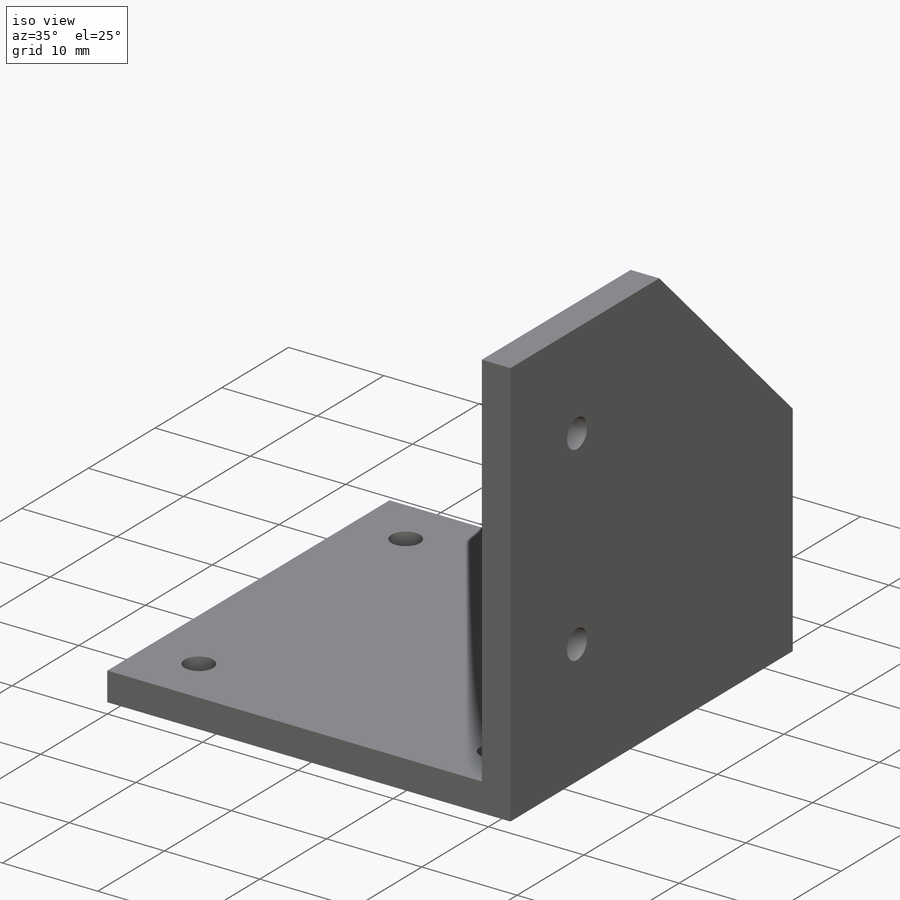
[diagram: iso view]
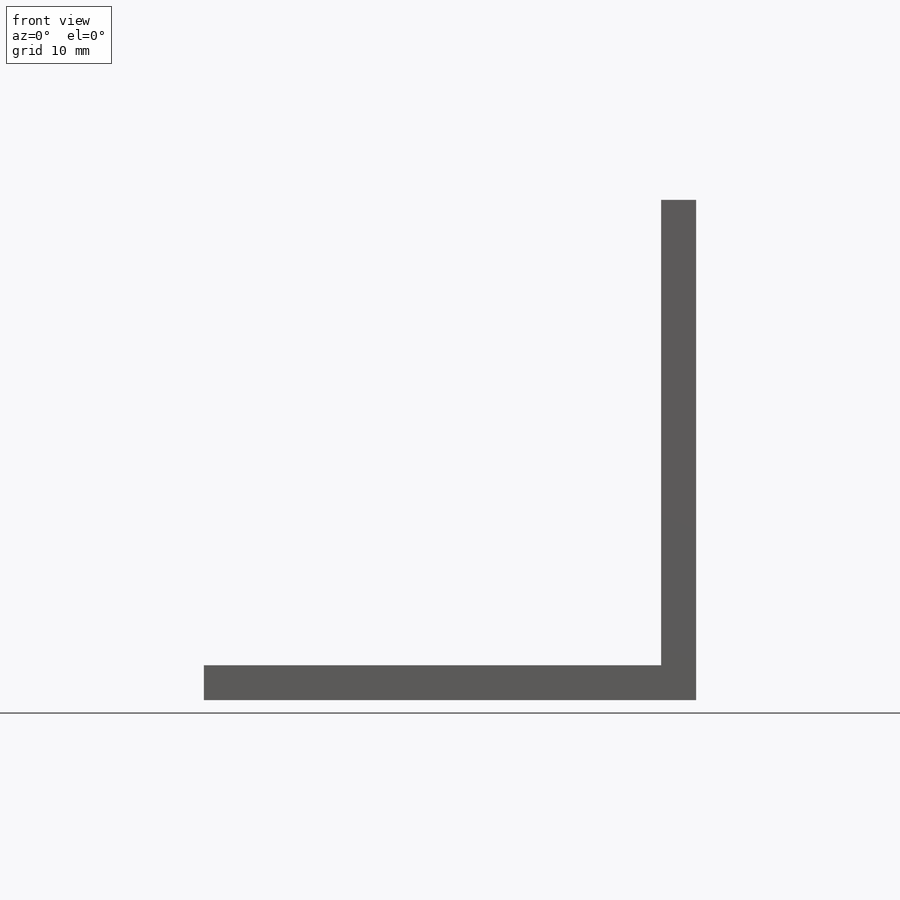
[diagram: front view]
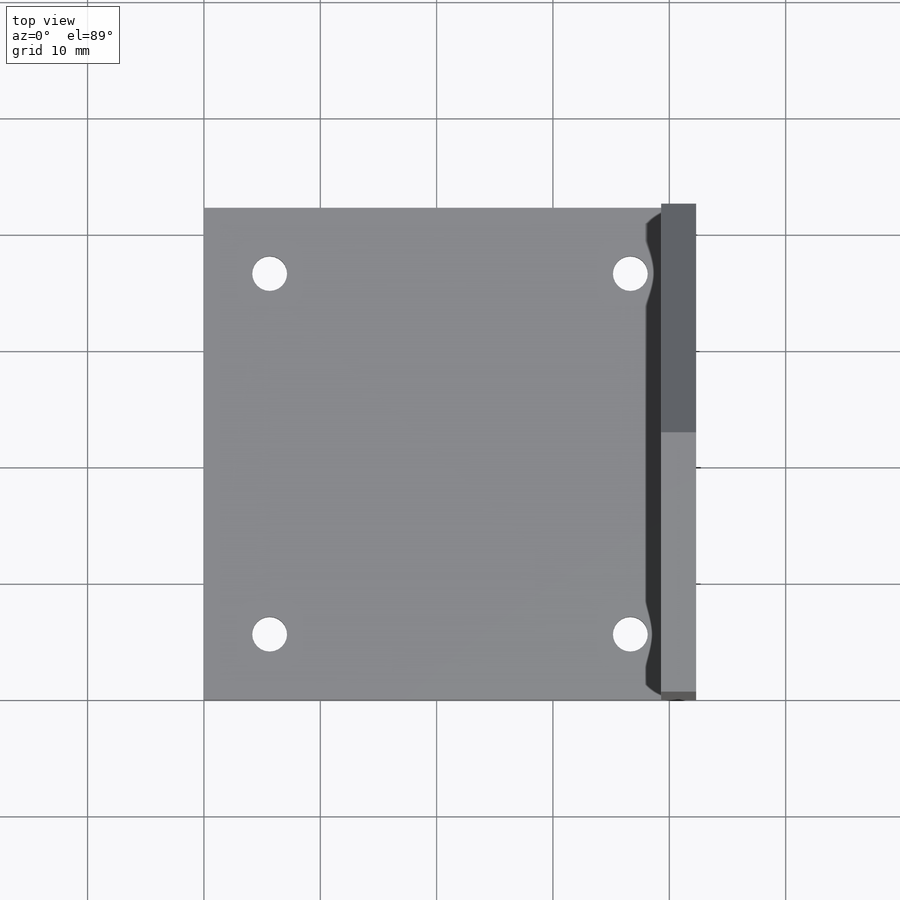
[diagram: top view]
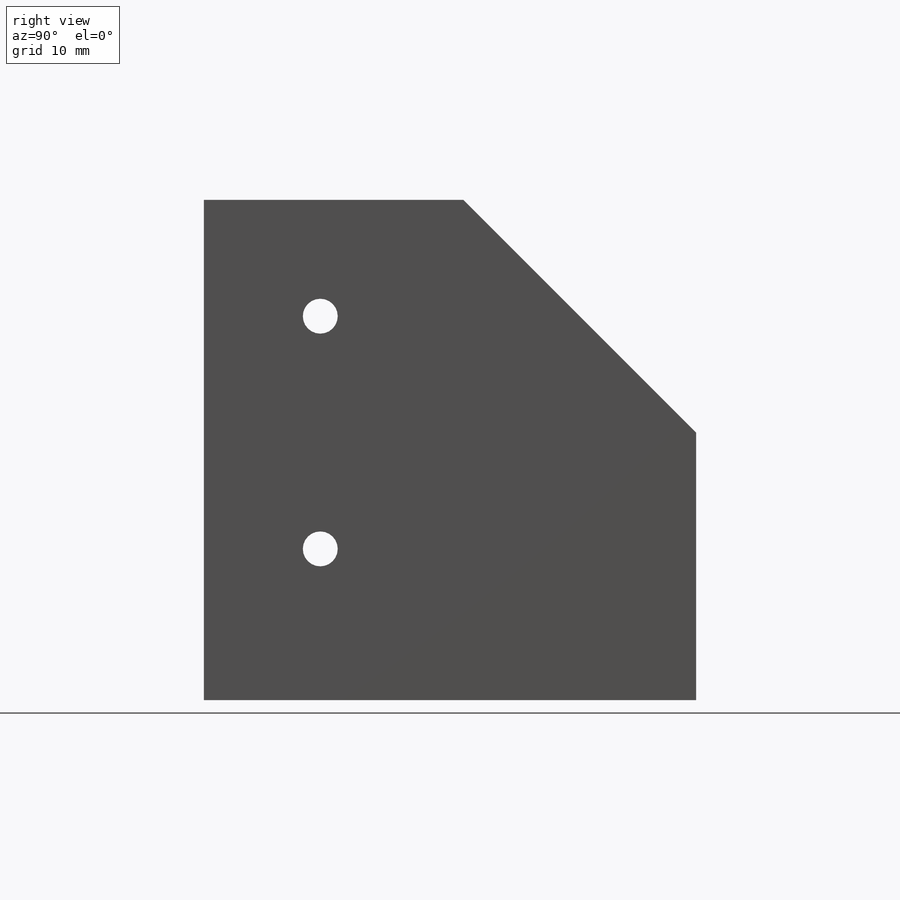
[diagram: right view]
SOLIDWORKS PART (.sldprt)
format: sldprt  version: not decoded by parser v0  size: 353,280 bytes
history: native  units: mm
features: sketch x5, cut_extrude x3, extrude x2, material x1 (+13 scaffold rows collapsed)
feature tree (24):
  scaffold x13  (default folders/planes/origin — collapsed)
  material  "Material <not specified>"
  sketch  "Sketch1"  dims[D1=42.3mm D2=42.3mm]
  extrude  "Boss-Extrude1"  Depth=3mm
  sketch  "Sketch2"  dims[c1.D9=3.0mm c1.D10=3.0mm c1.D11=3.0mm c1.D12=3.0mm c1.D1=4.15mm c1.D2=4.15mm c1.D3=4.15mm c1.D4=4.15mm c1.D5=4.15mm c1.D6=4.15mm c1.D7=4.15mm c1.D8=4.15mm c1.D13=34.0mm c2.D2=31.0mm c2.D3=5.65mm c2.D4=31.0mm c2.D5=5.65mm c2.D6=31.0mm c2.D7=5.65mm c2.D8=31.0mm c2.D13=5.65mm]
  cut_extrude  "Cut-Extrude1"  [1 undecoded]
  sketch  "Sketch5"  dims[D1=3.0mm]
  extrude  "Boss-Extrude2"  Depth=40mm
  sketch  "Sketch6"  dims[D1=20.0mm D2=20.0mm]
  cut_extrude  "Cut-Extrude2"  Depth=40mm
  sketch  "Sketch7"  dims[c1.D1=3.0mm c1.D2=3.0mm c1.D3=10.0mm c1.D4=10.0mm c1.D5=10.0mm c1.D6=20.0mm c2.D3=10.0mm c2.D4=10.0mm]
  cut_extrude  "Cut-Extrude3"  [1 undecoded]
decode coverage: 8 of 10 modeling features carry decoded parameters
note: 2 parameter values undecoded
note: suppression state not decoded; provenance and decode notes live in map.json
